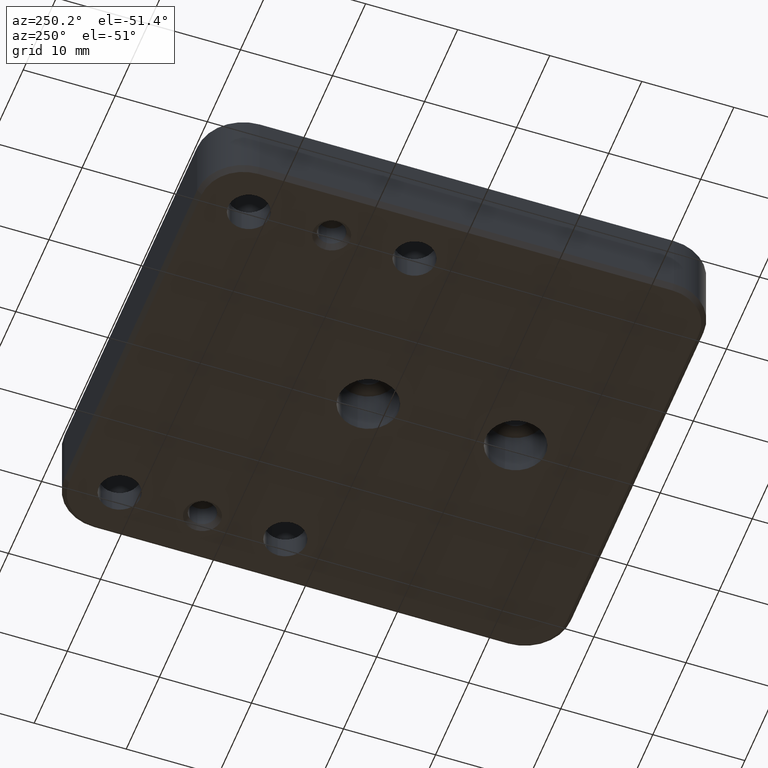
[diagram: clean part render]
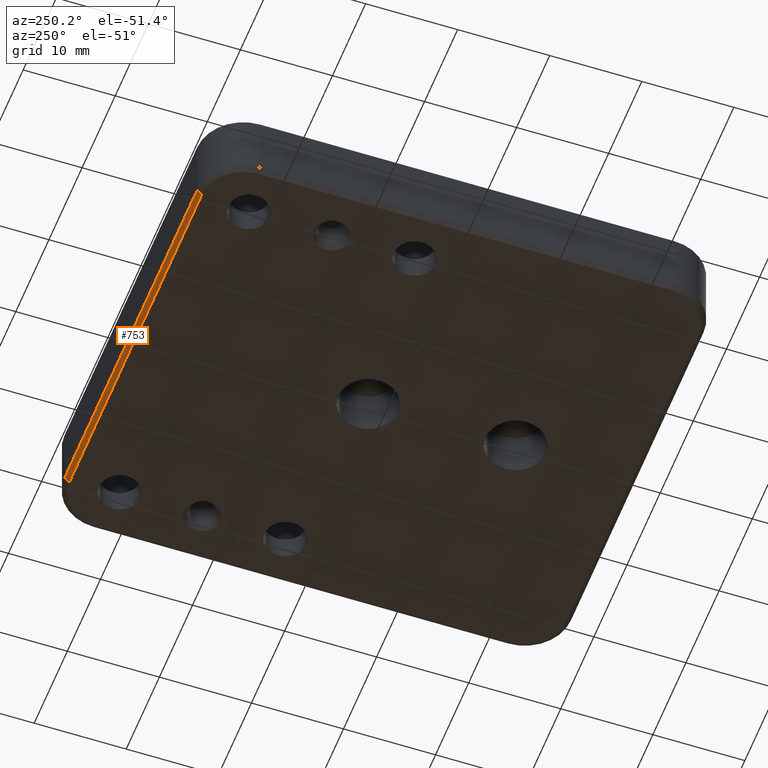
[diagram: same view with one face highlighted and labeled with its STEP entity id]
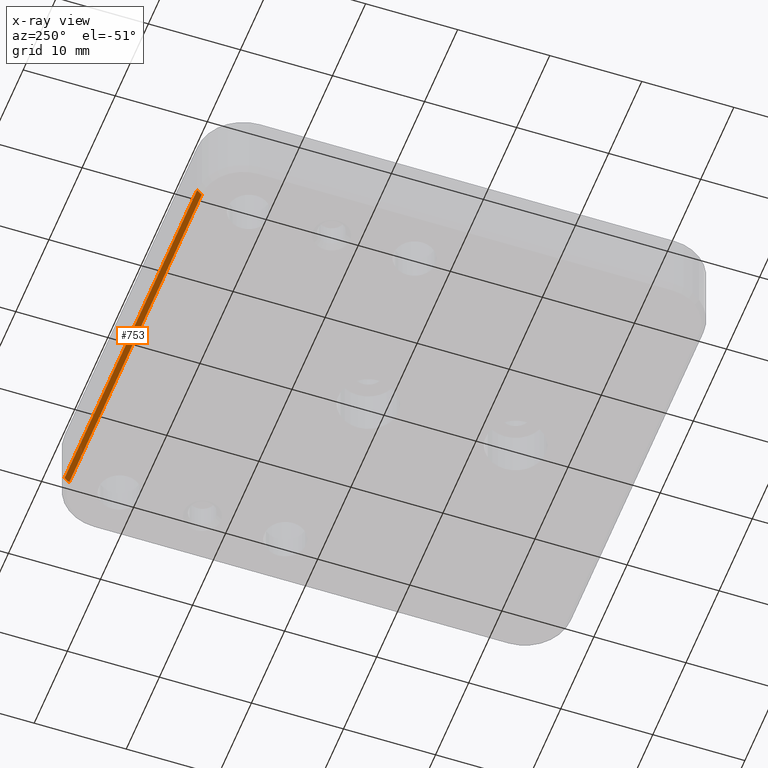
[diagram: x-ray of the same camera — body ghosted, the highlighted face saturated]
A machine part, auxiliary view. The second image highlights one B-rep face of the part: STEP entity #753.
The next image is the same camera in x-ray: the body ghosted, the highlighted face saturated — about 0% of this face is hidden behind the body in this view.
In plain terms, the highlighted planar face has unit normal (0, -0.7071, 0.7071).
Its self-contained STEP definition (entity closure, byte-faithful):
#24 = DIRECTION ( 'NONE',  ( -1.000000000000000000, 0.0000000000000000000, 0.0000000000000000000 ) ) ;
#64 = DIRECTION ( 'NONE',  ( 1.000000000000000000, 0.0000000000000000000, 0.0000000000000000000 ) ) ;
#78 = CARTESIAN_POINT ( 'NONE',  ( 19.99999999999998934, 27.50000000000000711, 0.4999999999999935052 ) ) ;
#191 = AXIS2_PLACEMENT_3D ( 'NONE', #1060, #1746, #24 ) ;
#260 = VECTOR ( 'NONE', #1455, 1000.000000000000000 ) ;
#274 = ORIENTED_EDGE ( 'NONE', *, *, #586, .F. ) ;
#356 = ORIENTED_EDGE ( 'NONE', *, *, #2028, .F. ) ;
#383 = EDGE_LOOP ( 'NONE', ( #356, #1876, #1604, #274 ) ) ;
#390 = PLANE ( 'NONE',  #191 ) ;
#447 = CARTESIAN_POINT ( 'NONE',  ( -25.00000000000000711, 27.50000000000000711, 0.4999999999999935052 ) ) ;
#449 = VERTEX_POINT ( 'NONE', #78 ) ;
#452 = CARTESIAN_POINT ( 'NONE',  ( -20.00000000000000711, 27.50000000000000711, 0.4999999999999935052 ) ) ;
#534 = DIRECTION ( 'NONE',  ( 0.0000000000000000000, -0.7071067811865524577, -0.7071067811865426878 ) ) ;
#586 = EDGE_CURVE ( 'NONE', #449, #1425, #776, .T. ) ;
#587 = VECTOR ( 'NONE', #724, 1000.000000000000000 ) ;
#650 = CARTESIAN_POINT ( 'NONE',  ( 19.99999999999998934, 27.00000000000000711, 0.0000000000000000000 ) ) ;
#689 = VECTOR ( 'NONE', #534, 1000.000000000000000 ) ;
#724 = DIRECTION ( 'NONE',  ( 0.0000000000000000000, 0.7071067811865524577, 0.7071067811865426878 ) ) ;
#753 = ADVANCED_FACE ( 'NONE', ( #1928 ), #390, .F. ) ;
#761 = VECTOR ( 'NONE', #64, 1000.000000000000000 ) ;
#776 = LINE ( 'NONE', #447, #260 ) ;
#1060 = CARTESIAN_POINT ( 'NONE',  ( -25.00000000000000711, 27.50000000000000711, 0.4999999999999935052 ) ) ;
#1076 = LINE ( 'NONE', #1424, #587 ) ;
#1097 = LINE ( 'NONE', #1781, #761 ) ;
#1347 = LINE ( 'NONE', #2065, #689 ) ;
#1424 = CARTESIAN_POINT ( 'NONE',  ( 19.99999999999998934, 27.00000000000000711, 0.0000000000000000000 ) ) ;
#1425 = VERTEX_POINT ( 'NONE', #452 ) ;
#1453 = VERTEX_POINT ( 'NONE', #650 ) ;
#1455 = DIRECTION ( 'NONE',  ( -1.000000000000000000, 0.0000000000000000000, 0.0000000000000000000 ) ) ;
#1515 = EDGE_CURVE ( 'NONE', #1425, #2084, #1347, .T. ) ;
#1604 = ORIENTED_EDGE ( 'NONE', *, *, #1515, .F. ) ;
#1746 = DIRECTION ( 'NONE',  ( 0.0000000000000000000, -0.7071067811865425767, 0.7071067811865524577 ) ) ;
#1771 = CARTESIAN_POINT ( 'NONE',  ( -20.00000000000000711, 27.00000000000000711, 0.0000000000000000000 ) ) ;
#1781 = CARTESIAN_POINT ( 'NONE',  ( -0.0000000000000000000, 27.00000000000000711, 0.0000000000000000000 ) ) ;
#1876 = ORIENTED_EDGE ( 'NONE', *, *, #2145, .F. ) ;
#1928 = FACE_OUTER_BOUND ( 'NONE', #383, .T. ) ;
#2028 = EDGE_CURVE ( 'NONE', #1453, #449, #1076, .T. ) ;
#2065 = CARTESIAN_POINT ( 'NONE',  ( -20.00000000000000711, 27.50000000000000711, 0.4999999999999935052 ) ) ;
#2084 = VERTEX_POINT ( 'NONE', #1771 ) ;
#2145 = EDGE_CURVE ( 'NONE', #2084, #1453, #1097, .T. ) ;